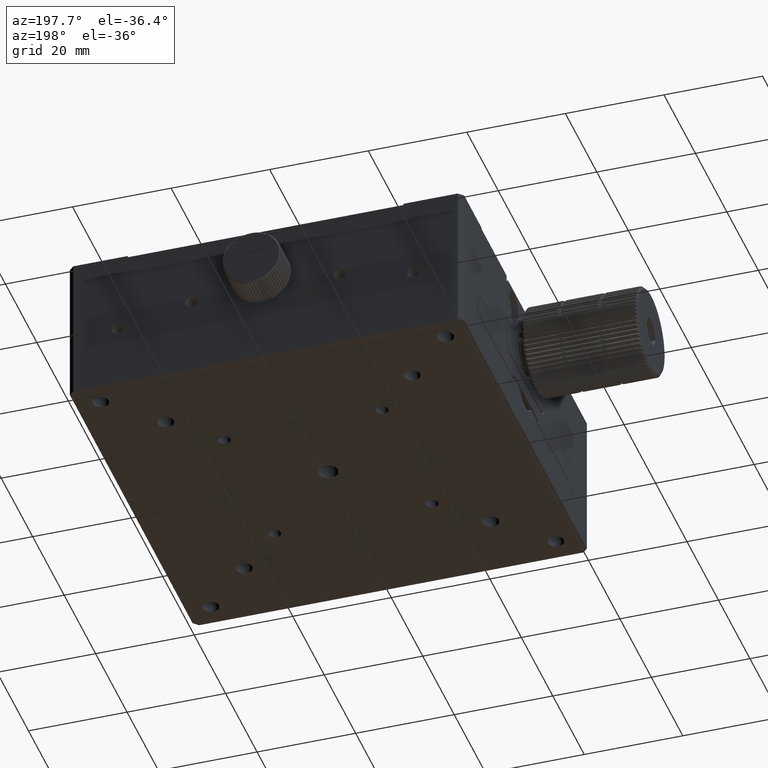
[diagram: clean part render]
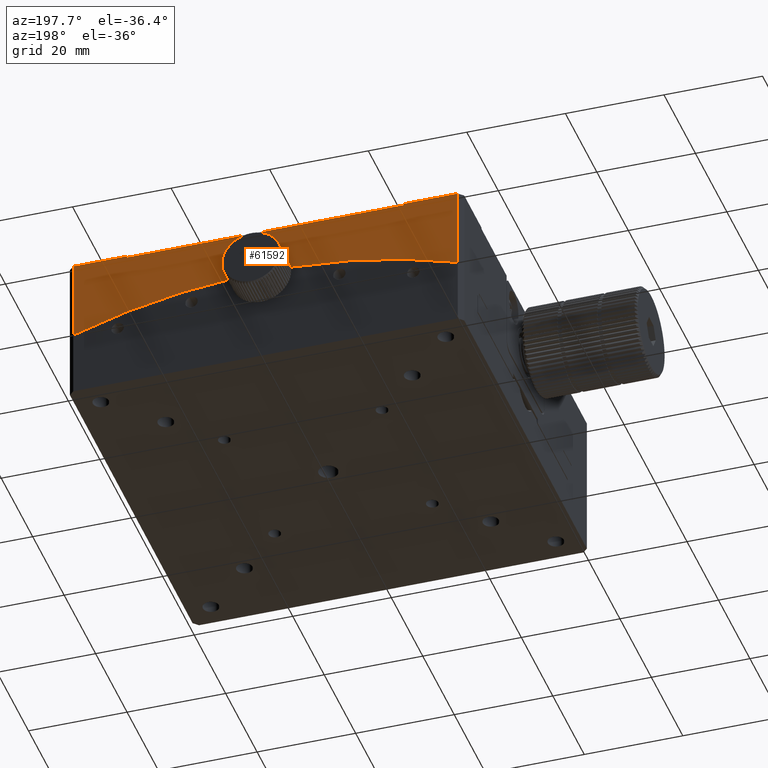
[diagram: same view with one face highlighted and labeled with its STEP entity id]
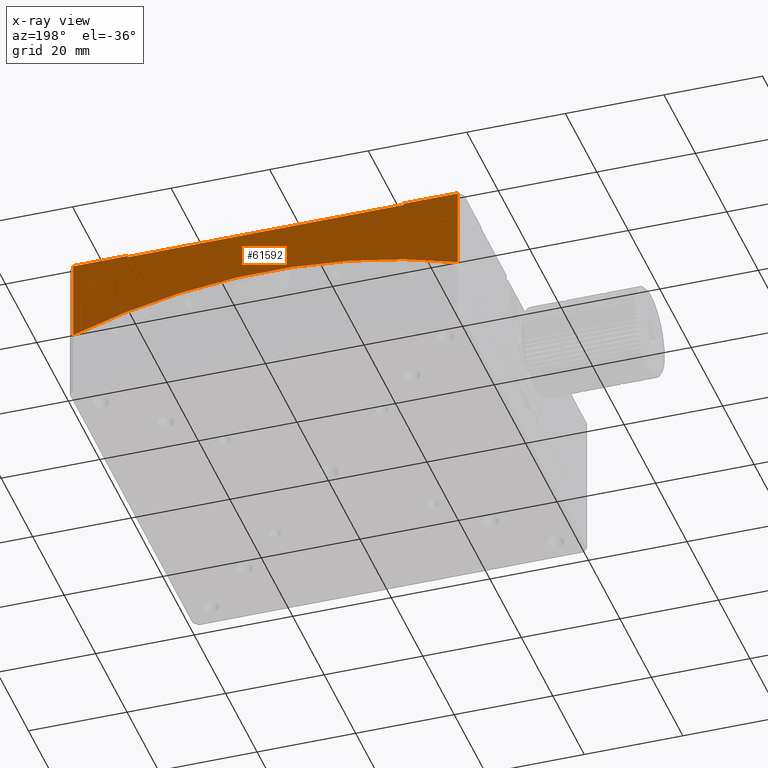
[diagram: x-ray of the same camera — body ghosted, the highlighted face saturated]
A machine part, auxiliary view. The second image highlights one B-rep face of the part: STEP entity #61592.
The next image is the same camera in x-ray: the body ghosted, the highlighted face saturated — about 0% of this face is hidden behind the body in this view.
In plain terms, the highlighted planar face has unit normal (0, 1, 0).
Its self-contained STEP definition (entity closure, byte-faithful):
#763 = CARTESIAN_POINT ( 'NONE',  ( 38.99999999999998579, 40.00000000000001421, 130.0000000000000000 ) ) ;
#1645 = LINE ( 'NONE', #43841, #89177 ) ;
#2845 = FACE_OUTER_BOUND ( 'NONE', #89161, .T. ) ;
#4200 = AXIS2_PLACEMENT_3D ( 'NONE', #38688, #65910, #9668 ) ;
#4283 = LINE ( 'NONE', #25184, #82850 ) ;
#4382 = DIRECTION ( 'NONE',  ( -0.000000000000000000, 0.000000000000000000, -1.000000000000000000 ) ) ;
#4443 = CARTESIAN_POINT ( 'NONE',  ( 0.000000000000000000, 40.00000000000001421, 130.0000000000000000 ) ) ;
#5652 = DIRECTION ( 'NONE',  ( -1.000000000000000000, -0.000000000000000000, 0.000000000000000000 ) ) ;
#6083 = CARTESIAN_POINT ( 'NONE',  ( -39.00000000000000000, 40.00000000000001421, -120.0000000000000426 ) ) ;
#6507 = DIRECTION ( 'NONE',  ( 0.000000000000000000, 0.000000000000000000, -1.000000000000000000 ) ) ;
#7141 = CIRCLE ( 'NONE', #12992, 120.0000000000000426 ) ;
#8809 = ORIENTED_EDGE ( 'NONE', *, *, #54501, .T. ) ;
#9512 = VERTEX_POINT ( 'NONE', #38923 ) ;
#9668 = DIRECTION ( 'NONE',  ( 0.000000000000000000, -0.000000000000000000, 1.000000000000000000 ) ) ;
#11046 = CARTESIAN_POINT ( 'NONE',  ( -28.00000000000000355, 40.00000000000001421, 129.7000000000000171 ) ) ;
#11217 = LINE ( 'NONE', #38908, #51650 ) ;
#12435 = CARTESIAN_POINT ( 'NONE',  ( 0.000000000000000000, 40.00000000000001421, 0.000000000000000000 ) ) ;
#12992 = AXIS2_PLACEMENT_3D ( 'NONE', #12435, #41029, #6507 ) ;
#13104 = CARTESIAN_POINT ( 'NONE',  ( 28.00000000000001066, 40.00000000000001421, 130.0000000000000000 ) ) ;
#16104 = CARTESIAN_POINT ( 'NONE',  ( -39.00000000000000000, 40.00000000000001421, 130.0000000000000000 ) ) ;
#16619 = ORIENTED_EDGE ( 'NONE', *, *, #34067, .T. ) ;
#17770 = CARTESIAN_POINT ( 'NONE',  ( -39.00000000000000711, 40.00000000000001421, 113.4856819162664578 ) ) ;
#18784 = VECTOR ( 'NONE', #78176, 1000.000000000000000 ) ;
#18894 = VECTOR ( 'NONE', #66911, 1000.000000000000000 ) ;
#21522 = LINE ( 'NONE', #29244, #18784 ) ;
#25184 = CARTESIAN_POINT ( 'NONE',  ( 0.000000000000000000, 40.00000000000000000, 129.7000000000000171 ) ) ;
#29244 = CARTESIAN_POINT ( 'NONE',  ( 28.00000000000001066, 40.00000000000001421, -120.0000000000000426 ) ) ;
#32155 = DIRECTION ( 'NONE',  ( 1.000000000000000000, 0.000000000000000000, -0.000000000000000000 ) ) ;
#32492 = EDGE_CURVE ( 'NONE', #53948, #43382, #7141, .T. ) ;
#33653 = CARTESIAN_POINT ( 'NONE',  ( -28.00000000000000711, 40.00000000000001421, 130.0000000000000000 ) ) ;
#34067 = EDGE_CURVE ( 'NONE', #43382, #74879, #88201, .T. ) ;
#38508 = ORIENTED_EDGE ( 'NONE', *, *, #69963, .F. ) ;
#38688 = CARTESIAN_POINT ( 'NONE',  ( 0.000000000000000000, 40.00000000000001421, -120.0000000000000426 ) ) ;
#38908 = CARTESIAN_POINT ( 'NONE',  ( 38.99999999999998579, 40.00000000000001421, -120.0000000000000426 ) ) ;
#38923 = CARTESIAN_POINT ( 'NONE',  ( -28.00000000000000355, 40.00000000000000711, 129.6999999999999886 ) ) ;
#39651 = LINE ( 'NONE', #11046, #89079 ) ;
#40060 = ORIENTED_EDGE ( 'NONE', *, *, #89036, .F. ) ;
#40301 = VERTEX_POINT ( 'NONE', #13104 ) ;
#41029 = DIRECTION ( 'NONE',  ( -0.000000000000000000, -1.000000000000000000, -0.000000000000000000 ) ) ;
#42698 = EDGE_CURVE ( 'NONE', #43102, #40301, #21522, .T. ) ;
#43102 = VERTEX_POINT ( 'NONE', #89463 ) ;
#43382 = VERTEX_POINT ( 'NONE', #17770 ) ;
#43841 = CARTESIAN_POINT ( 'NONE',  ( 0.000000000000000000, 40.00000000000001421, 130.0000000000000000 ) ) ;
#43844 = ORIENTED_EDGE ( 'NONE', *, *, #32492, .T. ) ;
#45328 = LINE ( 'NONE', #4443, #49463 ) ;
#49463 = VECTOR ( 'NONE', #32155, 1000.000000000000000 ) ;
#51650 = VECTOR ( 'NONE', #4382, 1000.000000000000000 ) ;
#53224 = DIRECTION ( 'NONE',  ( -0.000000000000000000, -0.000000000000000000, 1.000000000000000000 ) ) ;
#53948 = VERTEX_POINT ( 'NONE', #79435 ) ;
#54495 = VERTEX_POINT ( 'NONE', #763 ) ;
#54501 = EDGE_CURVE ( 'NONE', #74879, #81509, #1645, .T. ) ;
#61592 = ADVANCED_FACE ( 'NONE', ( #2845 ), #86725, .T. ) ;
#62951 = ORIENTED_EDGE ( 'NONE', *, *, #42698, .T. ) ;
#63187 = ORIENTED_EDGE ( 'NONE', *, *, #65724, .T. ) ;
#65724 = EDGE_CURVE ( 'NONE', #54495, #53948, #11217, .T. ) ;
#65910 = DIRECTION ( 'NONE',  ( 0.000000000000000000, 1.000000000000000000, 0.000000000000000000 ) ) ;
#66911 = DIRECTION ( 'NONE',  ( 0.000000000000000000, -0.000000000000000000, 1.000000000000000000 ) ) ;
#69963 = EDGE_CURVE ( 'NONE', #9512, #81509, #39651, .T. ) ;
#70611 = DIRECTION ( 'NONE',  ( 1.000000000000000000, 0.000000000000000000, -0.000000000000000000 ) ) ;
#74365 = EDGE_CURVE ( 'NONE', #40301, #54495, #45328, .T. ) ;
#74879 = VERTEX_POINT ( 'NONE', #16104 ) ;
#77540 = ORIENTED_EDGE ( 'NONE', *, *, #74365, .T. ) ;
#78176 = DIRECTION ( 'NONE',  ( 0.000000000000000000, -0.000000000000000000, 1.000000000000000000 ) ) ;
#79435 = CARTESIAN_POINT ( 'NONE',  ( 38.99999999999998579, 40.00000000000002132, 113.4856819162664578 ) ) ;
#81509 = VERTEX_POINT ( 'NONE', #33653 ) ;
#82850 = VECTOR ( 'NONE', #5652, 1000.000000000000000 ) ;
#86725 = PLANE ( 'NONE',  #4200 ) ;
#88201 = LINE ( 'NONE', #6083, #18894 ) ;
#89036 = EDGE_CURVE ( 'NONE', #43102, #9512, #4283, .T. ) ;
#89079 = VECTOR ( 'NONE', #53224, 1000.000000000000000 ) ;
#89161 = EDGE_LOOP ( 'NONE', ( #77540, #63187, #43844, #16619, #8809, #38508, #40060, #62951 ) ) ;
#89177 = VECTOR ( 'NONE', #70611, 1000.000000000000000 ) ;
#89463 = CARTESIAN_POINT ( 'NONE',  ( 28.00000000000001066, 40.00000000000001421, 129.6999999999999886 ) ) ;